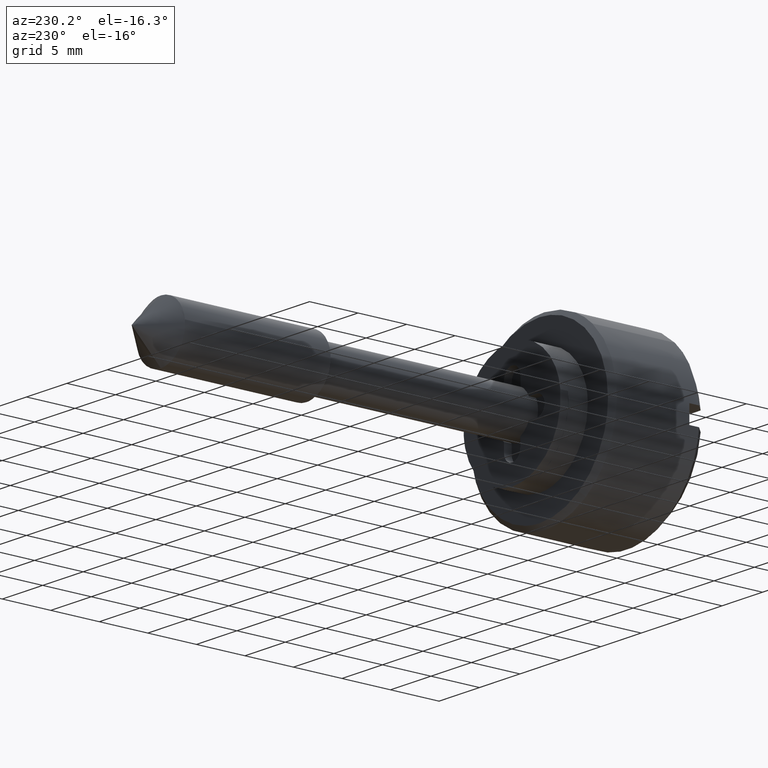
[diagram: clean part render]
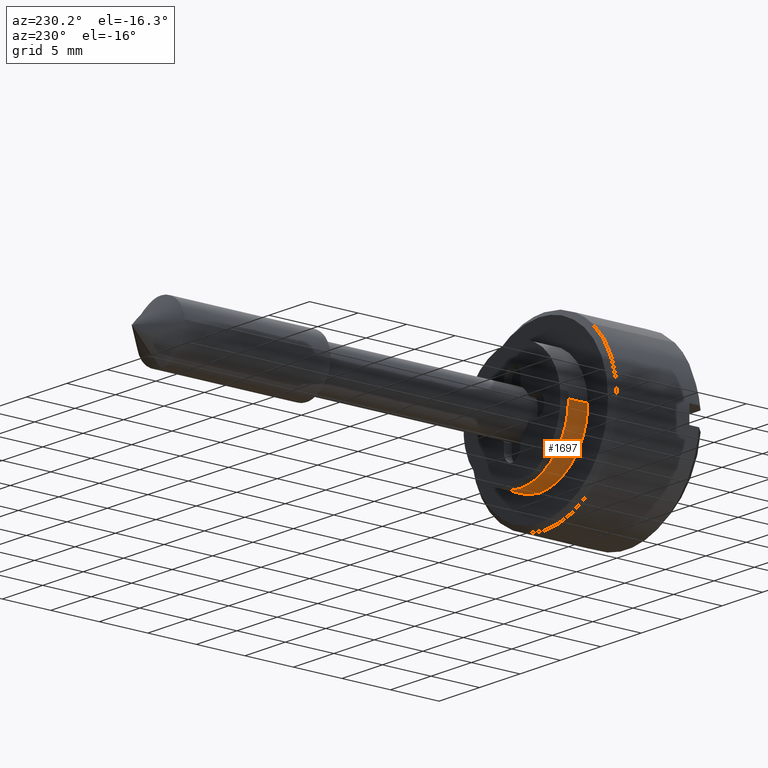
[diagram: same view with one face highlighted and labeled with its STEP entity id]
A machine part, auxiliary view. The second image highlights one B-rep face of the part: STEP entity #1697.
In plain terms, the highlighted face is a freeform B-spline surface patch.
Its self-contained STEP definition (entity closure, byte-faithful):
#1599=CARTESIAN_POINT('',(-2.050000000000118,-5.953597282953231,-0.744768012478976));
#1600=CARTESIAN_POINT('',(-2.050000000000118,-5.290387548799326,-6.046396983014668));
#1601=CARTESIAN_POINT('',(-2.050000000000118,0.052359212990243,-5.999771538385026));
#1602=CARTESIAN_POINT('',(-2.050000000000118,6.052130751375269,-5.947412325394783));
#1603=CARTESIAN_POINT('',(-2.050000000000118,5.999771538385026,0.052359212990243));
#1604=CARTESIAN_POINT('',(0.051250000000003,-5.953597282953231,-0.744768012478976));
#1605=CARTESIAN_POINT('',(0.051250000000003,-5.290387548799326,-6.046396983014668));
#1606=CARTESIAN_POINT('',(0.051250000000003,0.052359212990243,-5.999771538385026));
#1607=CARTESIAN_POINT('',(0.051250000000003,6.052130751375269,-5.947412325394783));
#1608=CARTESIAN_POINT('',(0.051250000000003,5.999771538385026,0.052359212990243));
#1616=(BOUNDED_SURFACE()B_SPLINE_SURFACE(2,1,((#1599,#1604),(#1600,#1605),(#1601,#1606),(#1602,#1607),(#1603,#1608)),.UNSPECIFIED.,.F.,.F.,.U.)B_SPLINE_SURFACE_WITH_KNOTS((3,2,3),(2,2),(0.0,9.145835457197935,19.086960954152211),(0.0,2.101250000000122),.UNSPECIFIED.)GEOMETRIC_REPRESENTATION_ITEM()RATIONAL_B_SPLINE_SURFACE(((0.956886118190660,0.956886118190660),(0.730538238691624,0.730538238691624),(1.0,1.0),(0.707106781186548,0.707106781186548),(1.0,1.0)))REPRESENTATION_ITEM('')SURFACE());
#1617=CARTESIAN_POINT('',(-2.000000000000115,0.0,-6.0));
#1618=VERTEX_POINT('',#1617);
#1619=CARTESIAN_POINT('',(-2.000000000000115,-5.953598272161385,-0.744760104767602));
#1620=VERTEX_POINT('',#1619);
#1621=CARTESIAN_POINT('',(-2.000000000000115,0.0,-6.0));
#1622=CARTESIAN_POINT('',(-2.000000000000116,-5.296198690261226,-6.000000000000001));
#1623=CARTESIAN_POINT('',(-2.000000000000116,-5.953598272161386,-0.744760104767602));
#1631=(BOUNDED_CURVE()B_SPLINE_CURVE(2,(#1621,#1622,#1623),.UNSPECIFIED.,.F.,.U.)B_SPLINE_CURVE_WITH_KNOTS((3,3),(0.0,0.228526295028897),.UNSPECIFIED.)CURVE()GEOMETRIC_REPRESENTATION_ITEM()RATIONAL_B_SPLINE_CURVE((1.0,0.732264791461895,0.954005864971808))REPRESENTATION_ITEM(''));
#1632=EDGE_CURVE('',#1618,#1620,#1631,.T.);
#1633=ORIENTED_EDGE('',*,*,#1632,.F.);
#1634=CARTESIAN_POINT('',(-2.000000000000453,5.999771612125104,0.052350761850252));
#1635=VERTEX_POINT('',#1634);
#1636=CARTESIAN_POINT('',(-2.000000000000453,5.999771612125104,0.052350761850252));
#1637=CARTESIAN_POINT('',(-2.000000000000115,6.000000000000001,0.026175879112923));
#1638=CARTESIAN_POINT('',(-2.000000000000115,6.0,0.0));
#1639=CARTESIAN_POINT('',(-2.000000000000114,6.0,-6.0));
#1640=CARTESIAN_POINT('',(-2.000000000000115,0.0,-6.0));
#1648=(BOUNDED_CURVE()B_SPLINE_CURVE(2,(#1636,#1637,#1638,#1639,#1640),.UNSPECIFIED.,.F.,.U.)B_SPLINE_CURVE_WITH_KNOTS((3,2,3),(0.748460353775743,0.750000000000000,1.0),.UNSPECIFIED.)CURVE()GEOMETRIC_REPRESENTATION_ITEM()RATIONAL_B_SPLINE_CURVE((0.996414602298726,0.998196192246173,1.0,0.707106781186548,1.0))REPRESENTATION_ITEM(''));
#1649=EDGE_CURVE('',#1635,#1618,#1648,.T.);
#1650=ORIENTED_EDGE('',*,*,#1649,.F.);
#1651=CARTESIAN_POINT('',(-5.898060E-017,5.999771621284479,0.052349711929797));
#1652=VERTEX_POINT('',#1651);
#1653=CARTESIAN_POINT('',(-2.000000000000453,5.999771612125104,0.052350761850252));
#1654=CARTESIAN_POINT('',(-5.898060E-017,5.999771621284479,0.052349711929797));
#1655=QUASI_UNIFORM_CURVE('',1,(#1653,#1654),.UNSPECIFIED.,.F.,.U.);
#1656=EDGE_CURVE('',#1635,#1652,#1655,.T.);
#1657=ORIENTED_EDGE('',*,*,#1656,.T.);
#1658=CARTESIAN_POINT('',(0.0,0.0,-6.0));
#1659=VERTEX_POINT('',#1658);
#1660=CARTESIAN_POINT('',(0.0,0.0,-6.0));
#1661=CARTESIAN_POINT('',(0.0,6.0,-6.0));
#1662=CARTESIAN_POINT('',(0.0,6.0,0.0));
#1663=CARTESIAN_POINT('',(0.0,6.0,0.026175354122729));
#1664=CARTESIAN_POINT('',(-5.898060E-017,5.999771621284479,0.052349711929797));
#1672=(BOUNDED_CURVE()B_SPLINE_CURVE(2,(#1660,#1661,#1662,#1663,#1664),.UNSPECIFIED.,.F.,.U.)B_SPLINE_CURVE_WITH_KNOTS((3,2,3),(0.500000000000000,0.750000000000000,0.751539615400415),.UNSPECIFIED.)CURVE()GEOMETRIC_REPRESENTATION_ITEM()RATIONAL_B_SPLINE_CURVE((1.0,0.707106781186548,1.0,0.998196228358551,0.996414673633887))REPRESENTATION_ITEM(''));
#1673=EDGE_CURVE('',#1659,#1652,#1672,.T.);
#1674=ORIENTED_EDGE('',*,*,#1673,.F.);
#1675=CARTESIAN_POINT('',(5.801229E-017,-5.953597282948480,-0.744768012516969));
#1676=VERTEX_POINT('',#1675);
#1677=CARTESIAN_POINT('',(5.801229E-017,-5.953597282948480,-0.744768012516969));
#1678=CARTESIAN_POINT('',(0.0,-5.296191600833249,-6.000000000000002));
#1679=CARTESIAN_POINT('',(0.0,0.0,-6.0));
#1687=(BOUNDED_CURVE()B_SPLINE_CURVE(2,(#1677,#1678,#1679),.UNSPECIFIED.,.F.,.U.)B_SPLINE_CURVE_WITH_KNOTS((3,3),(0.271473928972854,0.500000000000000),.UNSPECIFIED.)CURVE()GEOMETRIC_REPRESENTATION_ITEM()RATIONAL_B_SPLINE_CURVE((0.954005430270542,0.732265053896270,1.0))REPRESENTATION_ITEM(''));
#1688=EDGE_CURVE('',#1676,#1659,#1687,.T.);
#1689=ORIENTED_EDGE('',*,*,#1688,.F.);
#1690=CARTESIAN_POINT('',(-2.000000000000115,-5.953598272161385,-0.744760104767602));
#1691=CARTESIAN_POINT('',(5.801229E-017,-5.953597282948480,-0.744768012516969));
#1692=QUASI_UNIFORM_CURVE('',1,(#1690,#1691),.UNSPECIFIED.,.F.,.U.);
#1693=EDGE_CURVE('',#1620,#1676,#1692,.T.);
#1694=ORIENTED_EDGE('',*,*,#1693,.F.);
#1695=EDGE_LOOP('',(#1633,#1650,#1657,#1674,#1689,#1694));
#1696=FACE_OUTER_BOUND('',#1695,.T.);
#1697=ADVANCED_FACE('',(#1696),#1616,.T.);